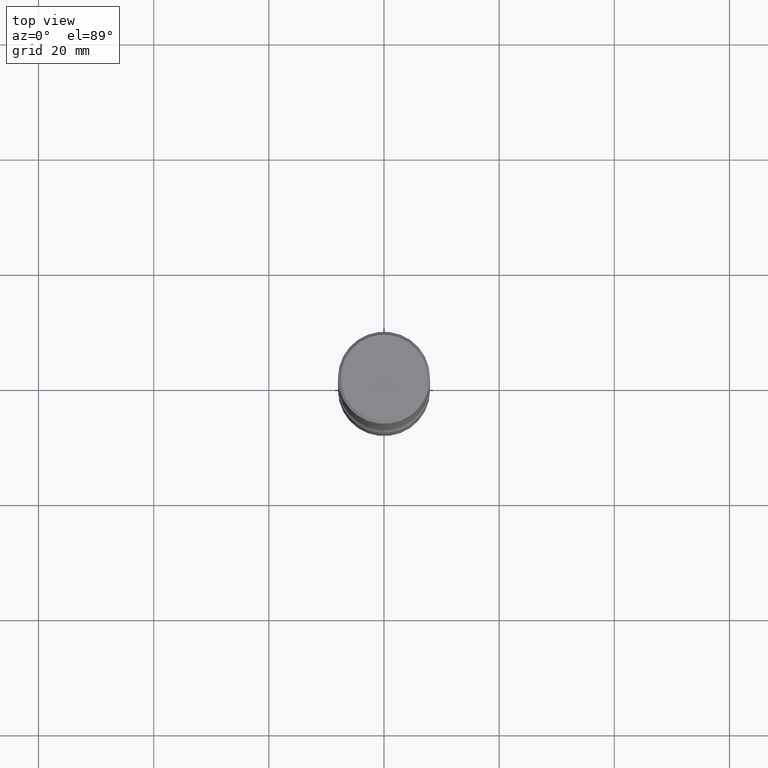
[diagram: clean part render]
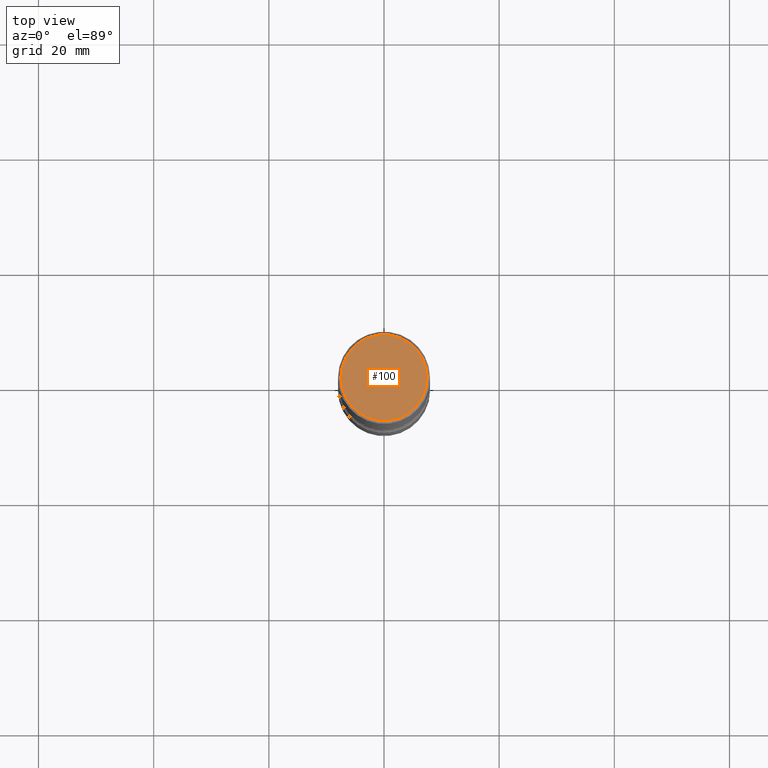
[diagram: same view with one face highlighted and labeled with its STEP entity id]
A machine part, top view. The second image highlights one B-rep face of the part: STEP entity #100.
In plain terms, the highlighted planar face has unit normal (0, -0, -1).
Its self-contained STEP definition (entity closure, byte-faithful):
#1 = PLANE ( 'NONE',  #516 ) ;
#29 = EDGE_LOOP ( 'NONE', ( #117, #406 ) ) ;
#82 = DIRECTION ( 'NONE',  ( -2.445468806185136597E-29, 3.491481338843145583E-15, 1.000000000000000000 ) ) ;
#100 = ADVANCED_FACE ( 'NONE', ( #357 ), #1, .F. ) ;
#117 = ORIENTED_EDGE ( 'NONE', *, *, #504, .T. ) ;
#223 = DIRECTION ( 'NONE',  ( -2.445468806185136597E-29, 3.491481338843145583E-15, 1.000000000000000000 ) ) ;
#228 = EDGE_CURVE ( 'NONE', #507, #377, #437, .T. ) ;
#270 = DIRECTION ( 'NONE',  ( 1.000000000000000000, -6.982962677686267499E-15, 4.876053491004736589E-29 ) ) ;
#279 = CARTESIAN_POINT ( 'NONE',  ( 2.059624841783563274E-15, 0.2949499999999998789, -1.023409652156634744E-15 ) ) ;
#342 = AXIS2_PLACEMENT_3D ( 'NONE', #469, #223, #270 ) ;
#357 = FACE_OUTER_BOUND ( 'NONE', #29, .T. ) ;
#358 = CARTESIAN_POINT ( 'NONE',  ( -0.2949499999999998789, 2.094539655171994924E-15, 1.280553747028670770E-17 ) ) ;
#377 = VERTEX_POINT ( 'NONE', #358 ) ;
#379 = DIRECTION ( 'NONE',  ( 1.000000000000000000, -6.982962677686267499E-15, 4.876053491004736589E-29 ) ) ;
#401 = AXIS2_PLACEMENT_3D ( 'NONE', #474, #82, #379 ) ;
#406 = ORIENTED_EDGE ( 'NONE', *, *, #228, .T. ) ;
#422 = CARTESIAN_POINT ( 'NONE',  ( 0.2949499999999998789, -2.127023677808859286E-15, 1.280553747031587399E-17 ) ) ;
#437 = CIRCLE ( 'NONE', #342, 0.2949499999999998789 ) ;
#442 = DIRECTION ( 'NONE',  ( -1.000000000000000000, 6.982962677686265922E-15, -4.876176775795935793E-29 ) ) ;
#469 = CARTESIAN_POINT ( 'NONE',  ( -3.131554243005659264E-46, 4.471029511141341874E-32, 1.280553747030123384E-17 ) ) ;
#474 = CARTESIAN_POINT ( 'NONE',  ( -3.131554243005659264E-46, 4.471029511141341874E-32, 1.280553747030123384E-17 ) ) ;
#504 = EDGE_CURVE ( 'NONE', #377, #507, #560, .T. ) ;
#507 = VERTEX_POINT ( 'NONE', #422 ) ;
#516 = AXIS2_PLACEMENT_3D ( 'NONE', #279, #522, #442 ) ;
#522 = DIRECTION ( 'NONE',  ( 2.438088387897960049E-29, -3.491481338843145188E-15, -1.000000000000000000 ) ) ;
#560 = CIRCLE ( 'NONE', #401, 0.2949499999999998789 ) ;